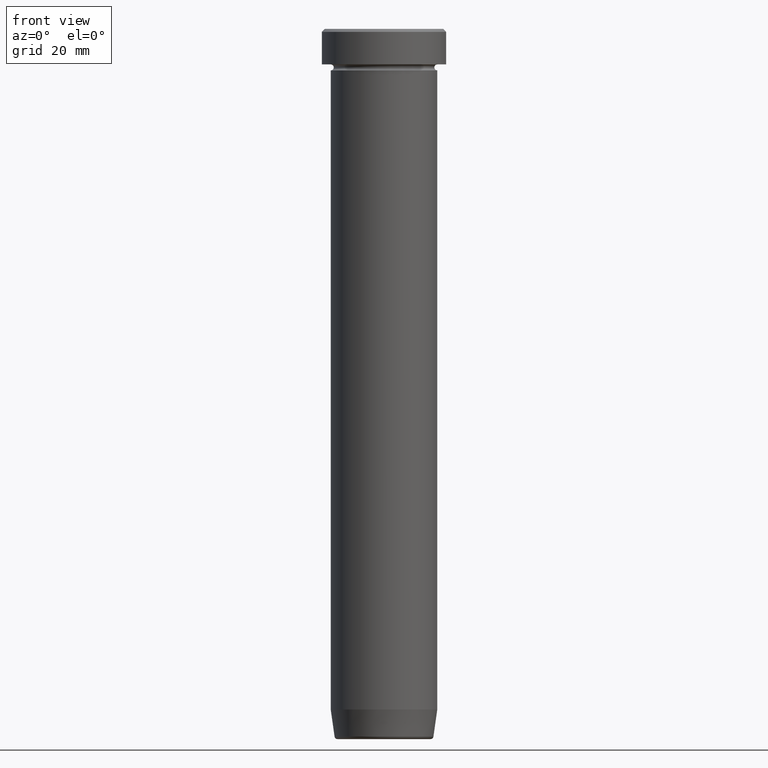
[diagram: clean part render]
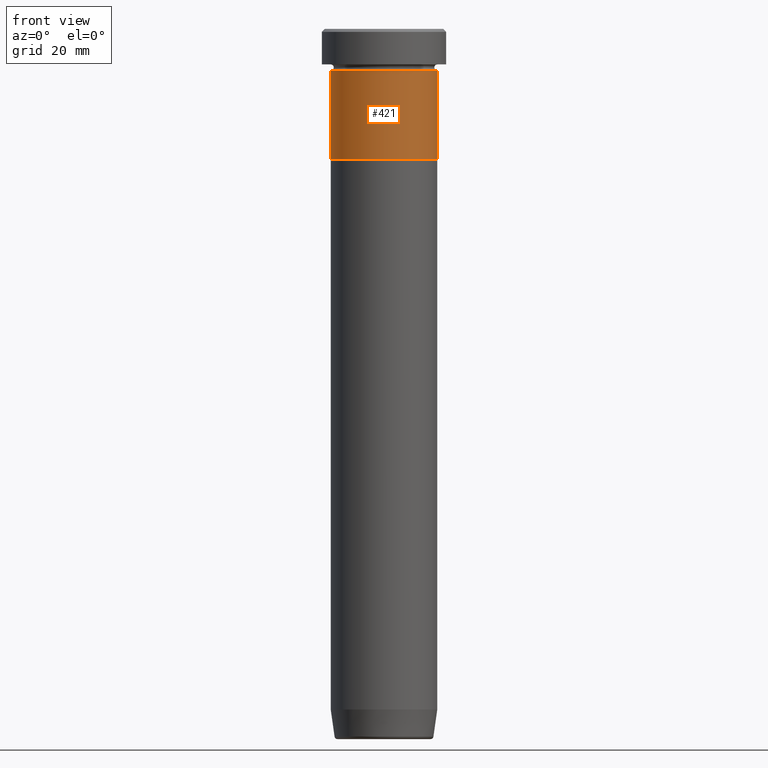
[diagram: same view with one face highlighted and labeled with its STEP entity id]
A machine part, front view. The second image highlights one B-rep face of the part: STEP entity #421.
In plain terms, the highlighted cylindrical surface (partial cylindrical patch) has radius 9 mm, axis along (-0, -0, 1).
Its self-contained STEP definition (entity closure, byte-faithful):
#16 = DIRECTION ( 'NONE',  ( -0.000000000000000000, -0.000000000000000000, 1.000000000000000000 ) ) ;
#20 = DIRECTION ( 'NONE',  ( 1.000000000000000000, 0.000000000000000000, 0.000000000000000000 ) ) ;
#22 = CIRCLE ( 'NONE', #72, 9.000000000000000000 ) ;
#39 = EDGE_CURVE ( 'NONE', #170, #570, #22, .T. ) ;
#47 = VECTOR ( 'NONE', #232, 1000.000000000000000 ) ;
#72 = AXIS2_PLACEMENT_3D ( 'NONE', #210, #491, #20 ) ;
#101 = CARTESIAN_POINT ( 'NONE',  ( 0.000000000000000000, 0.000000000000000000, 0.000000000000000000 ) ) ;
#132 = CARTESIAN_POINT ( 'NONE',  ( 9.000000000000000000, 0.000000000000000000, 0.000000000000000000 ) ) ;
#137 = DIRECTION ( 'NONE',  ( -0.000000000000000000, -0.000000000000000000, 1.000000000000000000 ) ) ;
#139 = ORIENTED_EDGE ( 'NONE', *, *, #39, .F. ) ;
#148 = FACE_OUTER_BOUND ( 'NONE', #410, .T. ) ;
#170 = VERTEX_POINT ( 'NONE', #320 ) ;
#198 = CARTESIAN_POINT ( 'NONE',  ( 9.000000000000000000, 0.000000000000000000, -22.00000000000000000 ) ) ;
#210 = CARTESIAN_POINT ( 'NONE',  ( 0.000000000000000000, 0.000000000000000000, -7.000000000000000000 ) ) ;
#227 = EDGE_CURVE ( 'NONE', #391, #570, #367, .T. ) ;
#232 = DIRECTION ( 'NONE',  ( -0.000000000000000000, -0.000000000000000000, 1.000000000000000000 ) ) ;
#233 = ORIENTED_EDGE ( 'NONE', *, *, #227, .T. ) ;
#249 = CARTESIAN_POINT ( 'NONE',  ( 9.000000000000000000, 0.000000000000000000, -7.000000000000000000 ) ) ;
#286 = EDGE_CURVE ( 'NONE', #493, #391, #333, .T. ) ;
#292 = ORIENTED_EDGE ( 'NONE', *, *, #382, .F. ) ;
#320 = CARTESIAN_POINT ( 'NONE',  ( -9.000000000000000000, 1.102182119232617714E-15, -7.000000000000000000 ) ) ;
#323 = AXIS2_PLACEMENT_3D ( 'NONE', #101, #16, #432 ) ;
#327 = DIRECTION ( 'NONE',  ( 1.000000000000000000, 0.000000000000000000, 0.000000000000000000 ) ) ;
#333 = CIRCLE ( 'NONE', #371, 9.000000000000000000 ) ;
#367 = LINE ( 'NONE', #132, #47 ) ;
#371 = AXIS2_PLACEMENT_3D ( 'NONE', #599, #137, #327 ) ;
#382 = EDGE_CURVE ( 'NONE', #493, #170, #473, .T. ) ;
#391 = VERTEX_POINT ( 'NONE', #198 ) ;
#392 = ORIENTED_EDGE ( 'NONE', *, *, #286, .T. ) ;
#410 = EDGE_LOOP ( 'NONE', ( #292, #392, #233, #139 ) ) ;
#421 = ADVANCED_FACE ( 'NONE', ( #148 ), #434, .T. ) ;
#425 = CARTESIAN_POINT ( 'NONE',  ( -9.000000000000000000, 1.102182119232617714E-15, 0.000000000000000000 ) ) ;
#432 = DIRECTION ( 'NONE',  ( 1.000000000000000000, 0.000000000000000000, 0.000000000000000000 ) ) ;
#434 = CYLINDRICAL_SURFACE ( 'NONE', #323, 9.000000000000000000 ) ;
#473 = LINE ( 'NONE', #425, #519 ) ;
#491 = DIRECTION ( 'NONE',  ( -0.000000000000000000, -0.000000000000000000, 1.000000000000000000 ) ) ;
#493 = VERTEX_POINT ( 'NONE', #568 ) ;
#515 = DIRECTION ( 'NONE',  ( -0.000000000000000000, -0.000000000000000000, 1.000000000000000000 ) ) ;
#519 = VECTOR ( 'NONE', #515, 1000.000000000000000 ) ;
#568 = CARTESIAN_POINT ( 'NONE',  ( -9.000000000000000000, 1.102182119232617714E-15, -22.00000000000000000 ) ) ;
#570 = VERTEX_POINT ( 'NONE', #249 ) ;
#599 = CARTESIAN_POINT ( 'NONE',  ( 0.000000000000000000, 0.000000000000000000, -22.00000000000000000 ) ) ;